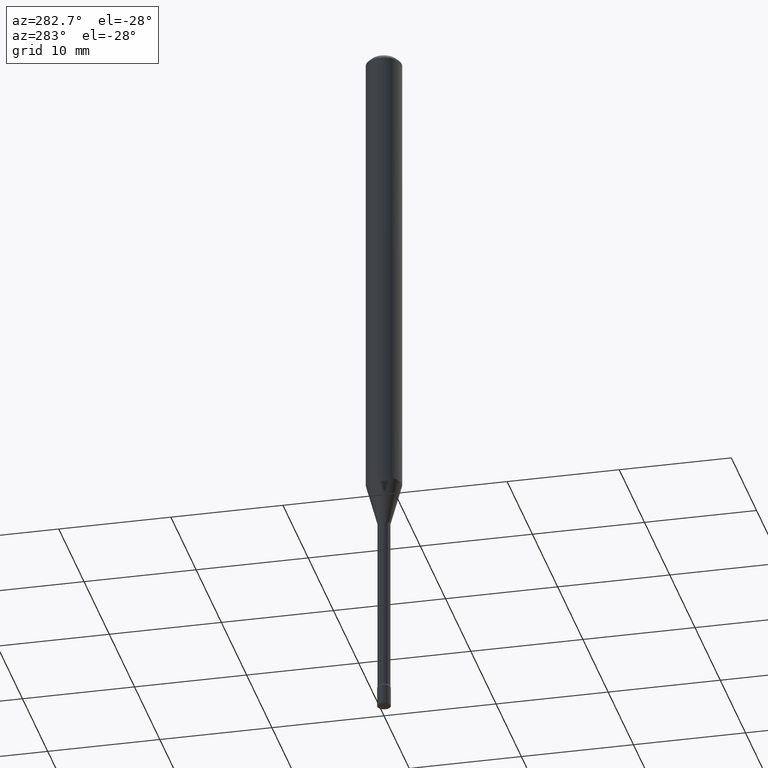
[diagram: clean part render]
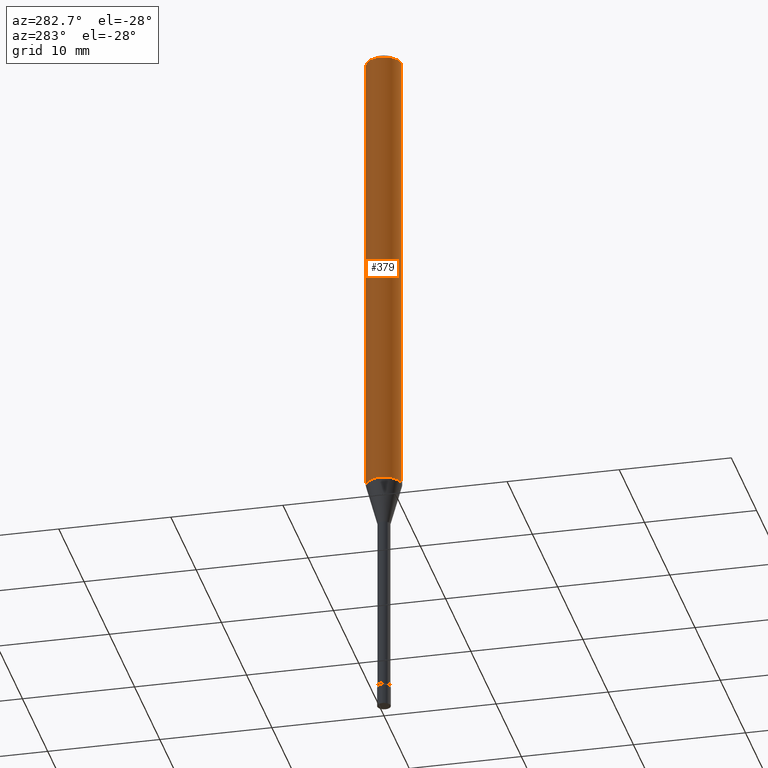
[diagram: same view with one face highlighted and labeled with its STEP entity id]
A machine part, auxiliary view. The second image highlights one B-rep face of the part: STEP entity #379.
In plain terms, the highlighted cylindrical surface (edge-blend (fillet) strip) has radius 1.5875 mm, axis along (-0, 0, 1).
Its self-contained STEP definition (entity closure, byte-faithful):
#8 = DIRECTION ( 'NONE',  ( -2.445459864664737566E-29, 3.491494143609276784E-15, 1.000000000000000000 ) ) ;
#14 = DIRECTION ( 'NONE',  ( -6.982962677686265922E-15, -1.000000000000000000, 4.370956789862821150E-15 ) ) ;
#18 = FACE_OUTER_BOUND ( 'NONE', #132, .T. ) ;
#50 = AXIS2_PLACEMENT_3D ( 'NONE', #446, #8, #173 ) ;
#52 = DIRECTION ( 'NONE',  ( -6.982962677686265922E-15, -1.000000000000000000, 3.491494143609276784E-15 ) ) ;
#81 = CARTESIAN_POINT ( 'NONE',  ( 4.440892098500625669E-16, 0.06250000000000000000, -2.182183839755797990E-16 ) ) ;
#86 = CARTESIAN_POINT ( 'NONE',  ( -4.364351673553916201E-16, -0.06250000000000000000, 2.182183839755797990E-16 ) ) ;
#96 = VERTEX_POINT ( 'NONE', #236 ) ;
#99 = VERTEX_POINT ( 'NONE', #396 ) ;
#108 = ORIENTED_EDGE ( 'NONE', *, *, #392, .F. ) ;
#113 = AXIS2_PLACEMENT_3D ( 'NONE', #247, #125, #14 ) ;
#123 = DIRECTION ( 'NONE',  ( -2.445459864664737566E-29, 3.491494143609276784E-15, 1.000000000000000000 ) ) ;
#125 = DIRECTION ( 'NONE',  ( -2.445459864664737566E-29, 3.491494143609276784E-15, 1.000000000000000000 ) ) ;
#130 = CARTESIAN_POINT ( 'NONE',  ( 0.000000000000000000, 0.000000000000000000, 0.000000000000000000 ) ) ;
#131 = EDGE_CURVE ( 'NONE', #510, #96, #443, .T. ) ;
#132 = EDGE_LOOP ( 'NONE', ( #314, #138, #192, #108 ) ) ;
#138 = ORIENTED_EDGE ( 'NONE', *, *, #431, .T. ) ;
#155 = AXIS2_PLACEMENT_3D ( 'NONE', #130, #123, #52 ) ;
#173 = DIRECTION ( 'NONE',  ( -6.982962677686265922E-15, -1.000000000000000000, 3.483106191921935554E-15 ) ) ;
#192 = ORIENTED_EDGE ( 'NONE', *, *, #440, .T. ) ;
#211 = CYLINDRICAL_SURFACE ( 'NONE', #155, 0.06250000000000000000 ) ;
#225 = VECTOR ( 'NONE', #489, 39.37007874015748143 ) ;
#236 = CARTESIAN_POINT ( 'NONE',  ( 4.440892098501030453E-16, 0.06249999999999995143, -0.01500000000000024751 ) ) ;
#247 = CARTESIAN_POINT ( 'NONE',  ( 4.020886606376113285E-29, -5.740802472832181902E-15, -1.644225147374217988 ) ) ;
#254 = DIRECTION ( 'NONE',  ( -2.445459864664737566E-29, 3.491494143609276390E-15, 1.000000000000000000 ) ) ;
#270 = CARTESIAN_POINT ( 'NONE',  ( -4.364351673553912750E-16, -0.06250000000000005551, -0.01499999999999981209 ) ) ;
#281 = CIRCLE ( 'NONE', #113, 0.06250000000000000000 ) ;
#314 = ORIENTED_EDGE ( 'NONE', *, *, #131, .F. ) ;
#364 = LINE ( 'NONE', #86, #452 ) ;
#378 = VERTEX_POINT ( 'NONE', #270 ) ;
#379 = ADVANCED_FACE ( 'NONE', ( #18 ), #211, .T. ) ;
#392 = EDGE_CURVE ( 'NONE', #96, #378, #481, .T. ) ;
#396 = CARTESIAN_POINT ( 'NONE',  ( -4.364351673553515854E-16, -0.06250000000000575928, -1.644225147374217544 ) ) ;
#425 = CARTESIAN_POINT ( 'NONE',  ( 4.440892098501025523E-16, 0.06249999999999423378, -1.644225147374218210 ) ) ;
#431 = EDGE_CURVE ( 'NONE', #510, #99, #281, .T. ) ;
#440 = EDGE_CURVE ( 'NONE', #99, #378, #364, .T. ) ;
#443 = LINE ( 'NONE', #81, #225 ) ;
#446 = CARTESIAN_POINT ( 'NONE',  ( 3.668189796997113601E-31, -5.237241215413926147E-17, -0.01500000000000003067 ) ) ;
#452 = VECTOR ( 'NONE', #254, 39.37007874015748143 ) ;
#481 = CIRCLE ( 'NONE', #50, 0.06250000000000000000 ) ;
#489 = DIRECTION ( 'NONE',  ( -2.445459864664737566E-29, 3.491494143609276390E-15, 1.000000000000000000 ) ) ;
#510 = VERTEX_POINT ( 'NONE', #425 ) ;